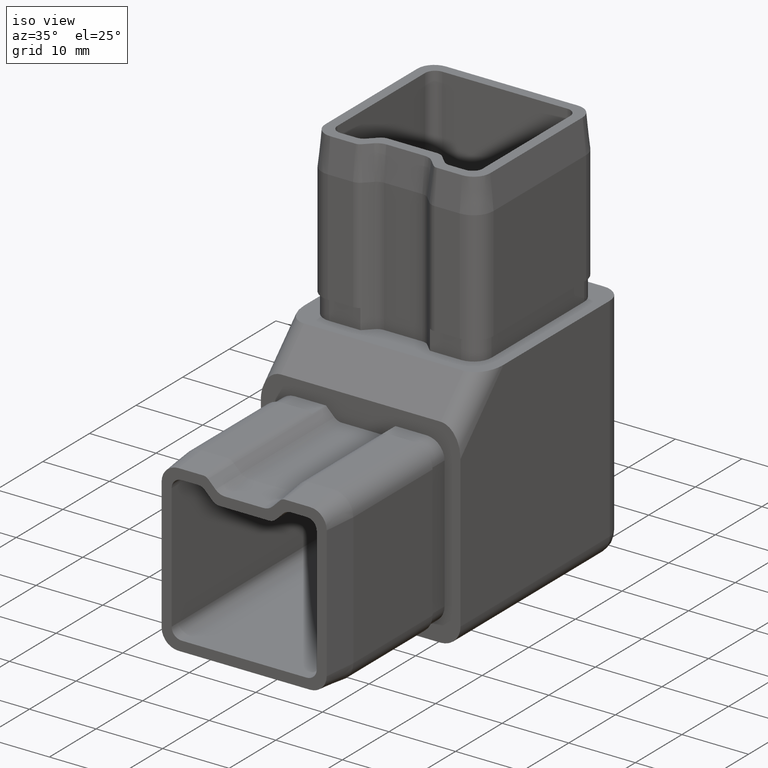
[diagram: clean part render]
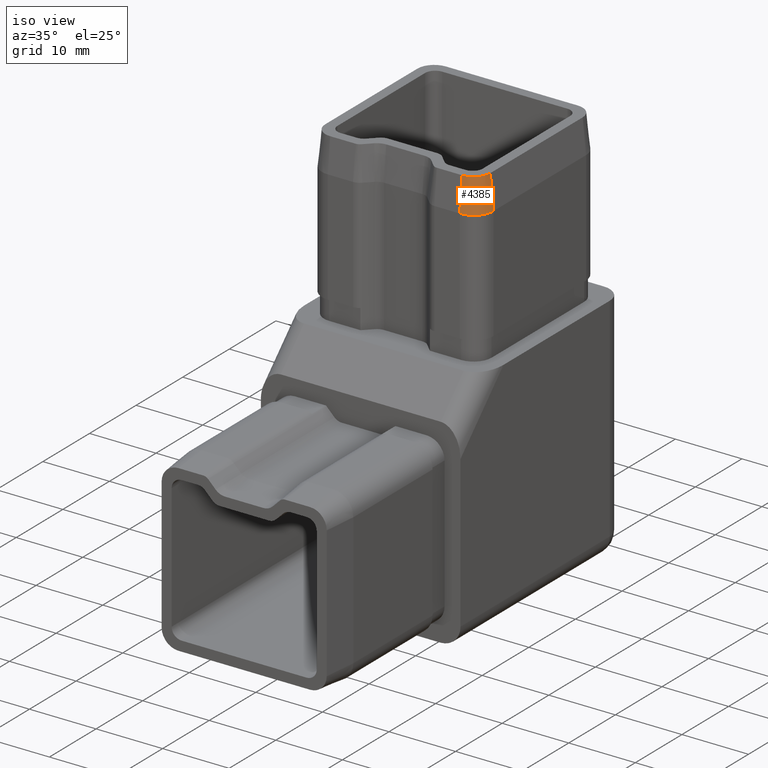
[diagram: same view with one face highlighted and labeled with its STEP entity id]
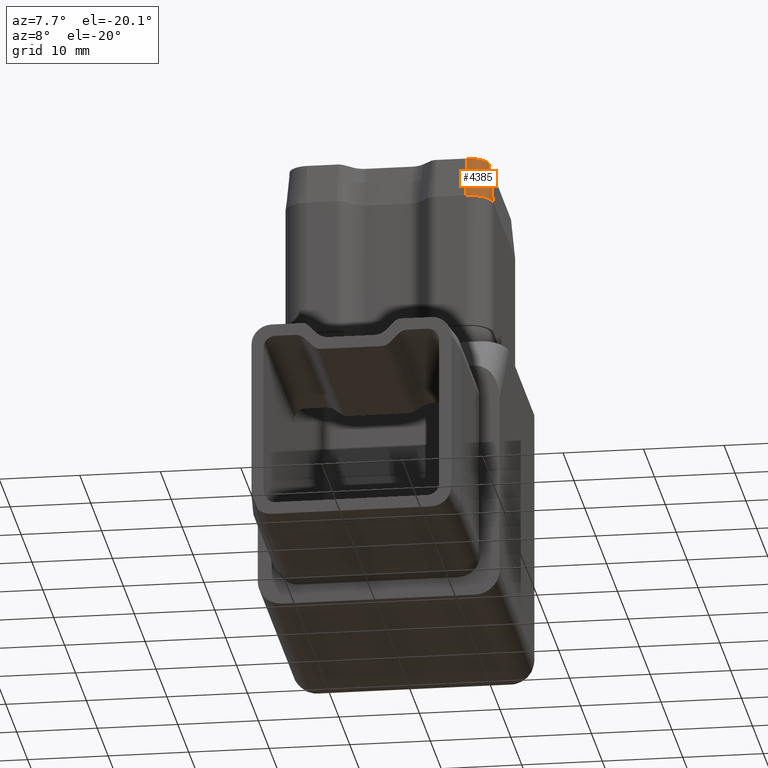
[diagram: same view with one face highlighted and labeled with its STEP entity id]
A machine part, iso view. The second image highlights one B-rep face of the part: STEP entity #4385.
A second angle (auxiliary view) of the same face is appended — the face is thin or edge-on in the first view.
In plain terms, the highlighted conical surface has half-angle 5.711 deg.
Its self-contained STEP definition (entity closure, byte-faithful):
#120 = DIRECTION ( 'NONE',  ( -0.0000000000000000000, -0.0000000000000000000, -1.000000000000000000 ) ) ;
#940 = VERTEX_POINT ( 'NONE', #8035 ) ;
#4385 = ADVANCED_FACE ( 'NONE', ( #7547 ), #21601, .T. ) ;
#4473 = DIRECTION ( 'NONE',  ( -1.000000000000000000, 0.0000000000000000000, 0.0000000000000000000 ) ) ;
#4974 = AXIS2_PLACEMENT_3D ( 'NONE', #10672, #120, #4473 ) ;
#5751 = EDGE_CURVE ( 'NONE', #26353, #16201, #18852, .T. ) ;
#6116 = DIRECTION ( 'NONE',  ( -0.0000000000000000000, -0.0000000000000000000, -1.000000000000000000 ) ) ;
#6154 = CARTESIAN_POINT ( 'NONE',  ( 9.900000000000002100, -7.400000000000003900, 42.50000000000000000 ) ) ;
#6182 = ORIENTED_EDGE ( 'NONE', *, *, #5751, .F. ) ;
#6406 = EDGE_CURVE ( 'NONE', #9664, #940, #21513, .T. ) ;
#7547 = FACE_OUTER_BOUND ( 'NONE', #24882, .T. ) ;
#7868 = CARTESIAN_POINT ( 'NONE',  ( 12.39999999999999900, -7.400000000000003900, 42.50000000000000000 ) ) ;
#8035 = CARTESIAN_POINT ( 'NONE',  ( 9.899999999999998600, -10.39999999999999700, 37.50000000000000700 ) ) ;
#8399 = CARTESIAN_POINT ( 'NONE',  ( 12.39999999999999900, -7.400000000000003900, 42.50000000000000000 ) ) ;
#9171 = EDGE_CURVE ( 'NONE', #16201, #940, #17099, .T. ) ;
#9504 = VECTOR ( 'NONE', #20490, 1000.000000000000200 ) ;
#9664 = VERTEX_POINT ( 'NONE', #14620 ) ;
#10549 = AXIS2_PLACEMENT_3D ( 'NONE', #6154, #25178, #27406 ) ;
#10672 = CARTESIAN_POINT ( 'NONE',  ( 9.900000000000002100, -7.400000000000003900, 42.50000000000000000 ) ) ;
#12162 = VECTOR ( 'NONE', #18853, 1000.000000000000200 ) ;
#12695 = DIRECTION ( 'NONE',  ( -1.000000000000000000, 0.0000000000000000000, 0.0000000000000000000 ) ) ;
#13478 = EDGE_CURVE ( 'NONE', #26353, #9664, #26471, .T. ) ;
#14620 = CARTESIAN_POINT ( 'NONE',  ( 9.899999999999998600, -9.899999999999998600, 42.50000000000000000 ) ) ;
#15620 = ORIENTED_EDGE ( 'NONE', *, *, #6406, .T. ) ;
#16201 = VERTEX_POINT ( 'NONE', #17405 ) ;
#16663 = AXIS2_PLACEMENT_3D ( 'NONE', #17082, #6116, #12695 ) ;
#16915 = CARTESIAN_POINT ( 'NONE',  ( 9.899999999999998600, -9.899999999999998600, 42.50000000000000000 ) ) ;
#17082 = CARTESIAN_POINT ( 'NONE',  ( 9.900000000000002100, -7.400000000000003900, 37.50000000000000700 ) ) ;
#17099 = CIRCLE ( 'NONE', #16663, 2.999999999999992500 ) ;
#17405 = CARTESIAN_POINT ( 'NONE',  ( 12.89999999999999500, -7.400000000000005700, 37.50000000000000700 ) ) ;
#18852 = LINE ( 'NONE', #7868, #9504 ) ;
#18853 = DIRECTION ( 'NONE',  ( -2.308512126642456500E-016, -0.09950371902099836000, -0.9950371902099891500 ) ) ;
#20490 = DIRECTION ( 'NONE',  ( 0.09950371902099836000, -2.369440582143617900E-016, -0.9950371902099891500 ) ) ;
#21513 = LINE ( 'NONE', #16915, #12162 ) ;
#21601 = CONICAL_SURFACE ( 'NONE', #10549, 2.499999999999995100, 0.09966865249116148300 ) ;
#24882 = EDGE_LOOP ( 'NONE', ( #6182, #26834, #15620, #27034 ) ) ;
#25178 = DIRECTION ( 'NONE',  ( -0.0000000000000000000, -0.0000000000000000000, -1.000000000000000000 ) ) ;
#26353 = VERTEX_POINT ( 'NONE', #8399 ) ;
#26471 = CIRCLE ( 'NONE', #4974, 2.499999999999995100 ) ;
#26834 = ORIENTED_EDGE ( 'NONE', *, *, #13478, .T. ) ;
#27034 = ORIENTED_EDGE ( 'NONE', *, *, #9171, .F. ) ;
#27406 = DIRECTION ( 'NONE',  ( -1.000000000000000000, 0.0000000000000000000, 0.0000000000000000000 ) ) ;